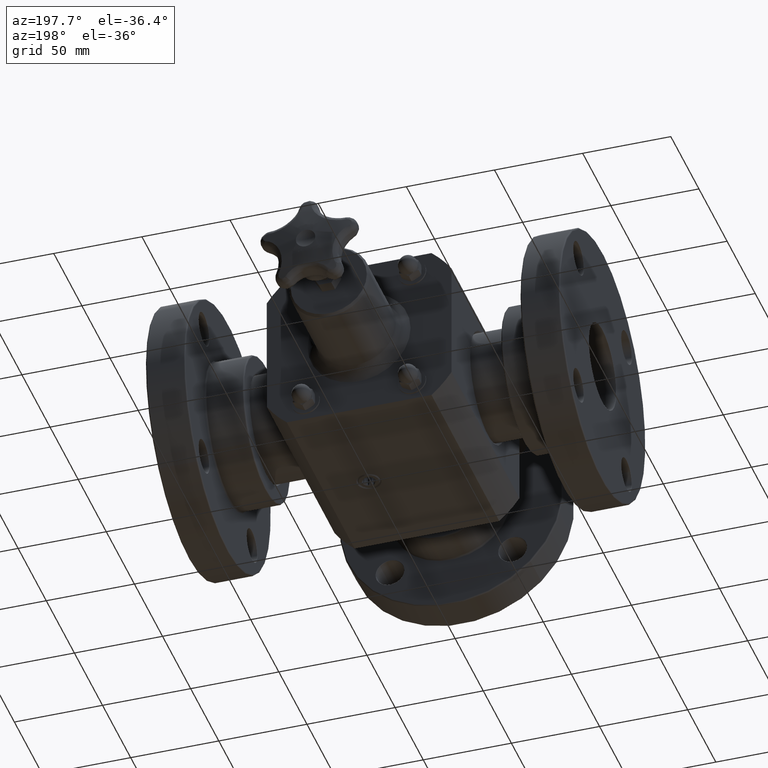
[diagram: clean part render]
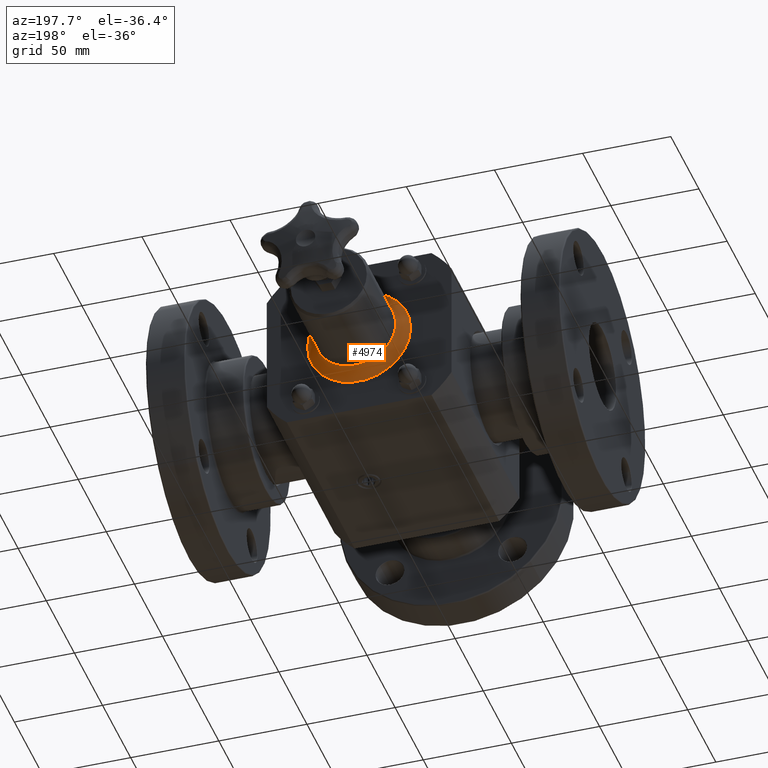
[diagram: same view with one face highlighted and labeled with its STEP entity id]
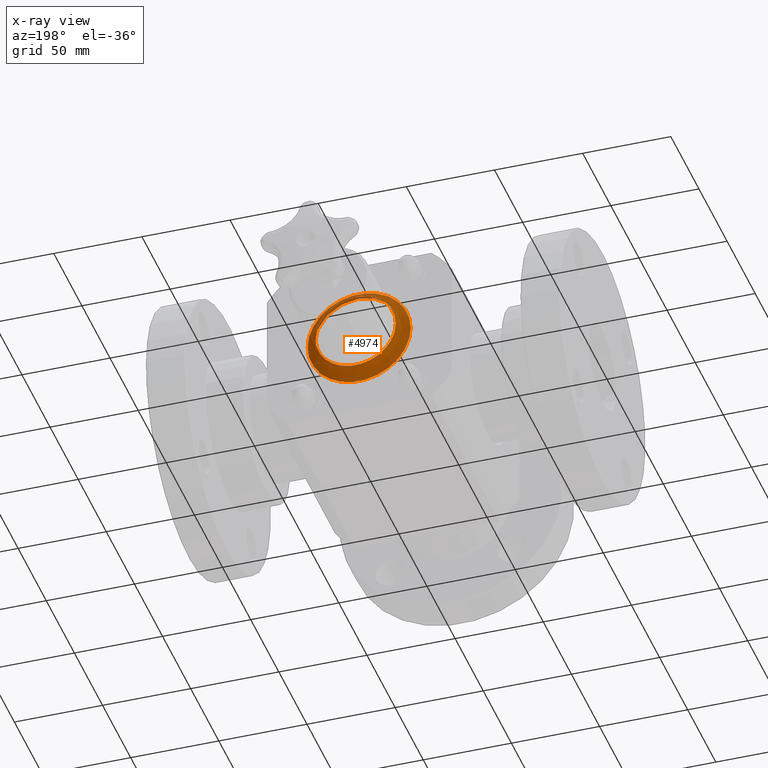
[diagram: x-ray of the same camera — body ghosted, the highlighted face saturated]
A machine part, auxiliary view. The second image highlights one B-rep face of the part: STEP entity #4974.
The next image is the same camera in x-ray: the body ghosted, the highlighted face saturated — about 13% of this face is hidden behind the body in this view.
In plain terms, the highlighted face is a freeform B-spline surface patch.
Its self-contained STEP definition (entity closure, byte-faithful):
#4892=CARTESIAN_POINT('',(0.899999999999996,5.000000000000001,-5.794671E-016));
#4893=VERTEX_POINT('',#4892);
#4894=CARTESIAN_POINT('',(-4.201988E-015,5.0,-2.622574E-016));
#4895=DIRECTION('',(0.0,-1.0,0.0));
#4896=DIRECTION('',(1.0,0.0,0.0));
#4897=AXIS2_PLACEMENT_3D('',#4894,#4895,#4896);
#4898=CIRCLE('',#4897,0.900000000000000);
#4899=EDGE_CURVE('',#4893,#4893,#4898,.T.);
#4907=CARTESIAN_POINT('',(-3.880001E-015,5.000000000000002,1.400000000000000));
#4908=CARTESIAN_POINT('',(-3.713691E-015,4.750000000000000,1.400000000000002));
#4909=CARTESIAN_POINT('',(-3.771188E-015,4.750000000000000,1.150000000000000));
#4910=CARTESIAN_POINT('',(-3.828686E-015,4.750000000000000,0.899999999999999));
#4911=CARTESIAN_POINT('',(-3.994996E-015,5.000000000000002,0.900000000000000));
#4912=CARTESIAN_POINT('',(-1.400000000000004,5.000000000000001,1.400000000000000));
#4913=CARTESIAN_POINT('',(-1.400000000000006,4.749999999999999,1.400000000000002));
#4914=CARTESIAN_POINT('',(-1.150000000000004,4.749999999999999,1.150000000000000));
#4915=CARTESIAN_POINT('',(-0.900000000000002,4.749999999999999,0.899999999999999));
#4916=CARTESIAN_POINT('',(-0.900000000000004,5.000000000000001,0.900000000000000));
#4917=CARTESIAN_POINT('',(-1.400000000000005,5.000000000000001,5.972934E-017));
#4918=CARTESIAN_POINT('',(-1.400000000000006,4.749999999999999,5.972934E-017));
#4919=CARTESIAN_POINT('',(-1.150000000000004,4.749999999999999,2.231709E-018));
#4920=CARTESIAN_POINT('',(-0.900000000000003,4.749999999999999,-5.526592E-017));
#4921=CARTESIAN_POINT('',(-0.900000000000005,5.000000000000001,-5.526592E-017));
#4922=CARTESIAN_POINT('',(-1.400000000000005,5.000000000000001,-1.400000000000000));
#4923=CARTESIAN_POINT('',(-1.400000000000006,4.749999999999999,-1.400000000000002));
#4924=CARTESIAN_POINT('',(-1.150000000000004,4.749999999999999,-1.150000000000000));
#4925=CARTESIAN_POINT('',(-0.900000000000003,4.749999999999999,-0.899999999999999));
#4926=CARTESIAN_POINT('',(-0.900000000000005,5.000000000000001,-0.900000000000000));
#4927=CARTESIAN_POINT('',(-4.523975E-015,5.000000000000002,-1.400000000000001));
#4928=CARTESIAN_POINT('',(-4.357664E-015,4.750000000000000,-1.400000000000002));
#4929=CARTESIAN_POINT('',(-4.300167E-015,4.750000000000000,-1.150000000000001));
#4930=CARTESIAN_POINT('',(-4.242669E-015,4.750000000000000,-0.899999999999999));
#4931=CARTESIAN_POINT('',(-4.408979E-015,5.000000000000002,-0.900000000000001));
#4932=CARTESIAN_POINT('',(1.399999999999996,5.000000000000003,-1.400000000000001));
#4933=CARTESIAN_POINT('',(1.399999999999998,4.750000000000001,-1.400000000000002));
#4934=CARTESIAN_POINT('',(1.149999999999996,4.750000000000001,-1.150000000000001));
#4935=CARTESIAN_POINT('',(0.899999999999994,4.750000000000001,-0.899999999999999));
#4936=CARTESIAN_POINT('',(0.899999999999996,5.000000000000003,-0.900000000000000));
#4937=CARTESIAN_POINT('',(1.399999999999996,5.000000000000003,-5.842442E-016));
#4938=CARTESIAN_POINT('',(1.399999999999998,4.750000000000001,-5.842442E-016));
#4939=CARTESIAN_POINT('',(1.149999999999996,4.750000000000001,-5.267465E-016));
#4940=CARTESIAN_POINT('',(0.899999999999995,4.750000000000001,-4.692489E-016));
#4941=CARTESIAN_POINT('',(0.899999999999996,5.000000000000003,-4.692489E-016));
#4942=CARTESIAN_POINT('',(1.399999999999996,5.000000000000003,1.400000000000000));
#4943=CARTESIAN_POINT('',(1.399999999999998,4.750000000000001,1.400000000000001));
#4944=CARTESIAN_POINT('',(1.149999999999996,4.750000000000001,1.150000000000000));
#4945=CARTESIAN_POINT('',(0.899999999999995,4.750000000000001,0.899999999999998));
#4946=CARTESIAN_POINT('',(0.899999999999996,5.000000000000003,0.900000000000000));
#4947=CARTESIAN_POINT('',(-3.880001E-015,5.000000000000002,1.400000000000000));
#4948=CARTESIAN_POINT('',(-3.713691E-015,4.750000000000000,1.400000000000002));
#4949=CARTESIAN_POINT('',(-3.771188E-015,4.750000000000000,1.150000000000000));
#4950=CARTESIAN_POINT('',(-3.828686E-015,4.750000000000000,0.899999999999999));
#4951=CARTESIAN_POINT('',(-3.994996E-015,5.000000000000002,0.900000000000000));
#4959=(BOUNDED_SURFACE()B_SPLINE_SURFACE(2,2,((#4907,#4912,#4917,#4922,#4927,#4932,#4937,#4942,#4947),(#4908,#4913,#4918,#4923,#4928,#4933,#4938,#4943,#4948),(#4909,#4914,#4919,#4924,#4929,#4934,#4939,#4944,#4949),(#4910,#4915,#4920,#4925,#4930,#4935,#4940,#4945,#4950),(#4911,#4916,#4921,#4926,#4931,#4936,#4941,#4946,#4951)),.UNSPECIFIED.,.F.,.T.,.U.)B_SPLINE_SURFACE_WITH_KNOTS((3,2,3),(3,2,2,2,3),(-6.612826E-015,1.570796326794897,3.141592653589800),(0.0,1.570796326794897,3.141592653589793,4.712388980384690,6.283185307179586),.UNSPECIFIED.)GEOMETRIC_REPRESENTATION_ITEM()RATIONAL_B_SPLINE_SURFACE(((1.0,0.707106781186548,1.0,0.707106781186548,1.0,0.707106781186548,1.0,0.707106781186548,1.0),(0.707106781186548,0.500000000000001,0.707106781186548,0.500000000000001,0.707106781186548,0.500000000000001,0.707106781186548,0.500000000000001,0.707106781186548),(1.0,0.707106781186548,1.0,0.707106781186548,1.0,0.707106781186548,1.0,0.707106781186548,1.0),(0.707106781186550,0.500000000000001,0.707106781186550,0.500000000000001,0.707106781186550,0.500000000000001,0.707106781186550,0.500000000000001,0.707106781186550),(1.0,0.707106781186548,1.0,0.707106781186548,1.0,0.707106781186548,1.0,0.707106781186548,1.0)))REPRESENTATION_ITEM('')SURFACE());
#4960=CARTESIAN_POINT('',(1.149999999999996,4.750000000000002,-6.675809E-016));
#4961=VERTEX_POINT('',#4960);
#4962=CARTESIAN_POINT('',(-4.035678E-015,4.750000000000001,-2.622574E-016));
#4963=DIRECTION('',(0.0,-1.0,0.0));
#4964=DIRECTION('',(1.0,0.0,0.0));
#4965=AXIS2_PLACEMENT_3D('',#4962,#4963,#4964);
#4966=CIRCLE('',#4965,1.150000000000000);
#4967=EDGE_CURVE('',#4961,#4961,#4966,.T.);
#4968=ORIENTED_EDGE('',*,*,#4967,.F.);
#4969=EDGE_LOOP('',(#4968));
#4970=FACE_OUTER_BOUND('',#4969,.T.);
#4971=ORIENTED_EDGE('',*,*,#4899,.T.);
#4972=EDGE_LOOP('',(#4971));
#4973=FACE_BOUND('',#4972,.T.);
#4974=ADVANCED_FACE('',(#4970,#4973),#4959,.T.);